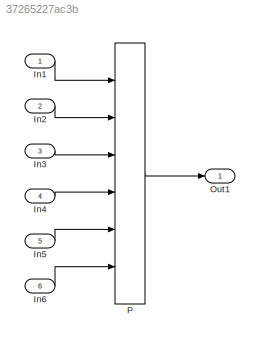
MODEL slx_37265227ac3b
KIND model
CONFIG AbsTol = auto
CONFIG EnableMultiTasking = off
CONFIG FixedStep = auto
CONFIG MaxStep = auto
CONFIG MinStep = auto
CONFIG RelTol = 1e-3
CONFIG SampleTimeConstraint = Unconstrained
CONFIG Solver = FixedStepDiscrete
CONFIG SolverName = FixedStepDiscrete
CONFIG StartTime = 0.0
CONFIG StopTime = 10.0
WORKSPACE source: MAT-file member
WORKSPACE MCOS: class17 (value not decoded)
BLOCK [Inport] In1
  IconDisplay = Port number
  OutMax = 127
  OutMin = 0
  PortDimensions = 3
BLOCK [Inport] In2
  IconDisplay = Port number
  OutMax = 127
  OutMin = 0
  Port = 2
BLOCK [Inport] In3
  IconDisplay = Port number
  OutMax = 127
  OutMin = 0
  Port = 3
BLOCK [Inport] In4
  IconDisplay = Port number
  OutMax = 127
  OutMin = 0
  Port = 4
BLOCK [Inport] In5
  IconDisplay = Port number
  OutMax = 127
  OutMin = 0
  Port = 5
BLOCK [Inport] In6
  IconDisplay = Port number
  OutMax = 127
  OutMin = 0
  Port = 6
BLOCK [Outport] Out1
  IconDisplay = Port number
BLOCK [Lookup_n-D] P
  BreakpointsForDimension3 = [5, 7]
  DataSpecification = Lookup table object
  ExtrapMethod = Clip
  InternalRulePriority = Speed
  InterpMethod = Nearest
  LookupTableObject = LUTObjLKnD33
  NumberOfTableDimensions = 6
  OutDataTypeStr = double
  Ports = [6, 1]
  RndMeth = Simplest
  SaturateOnIntegerOverflow = on
  Table = reshape(repmat([4 5 6;16 19 20;10 18 23],1,2),[3,3,2])
LINE In1:1 -> P:1
LINE In2:1 -> P:2
LINE In3:1 -> P:3
LINE In4:1 -> P:4
LINE In5:1 -> P:5
LINE In6:1 -> P:6
LINE P:1 -> Out1:1
